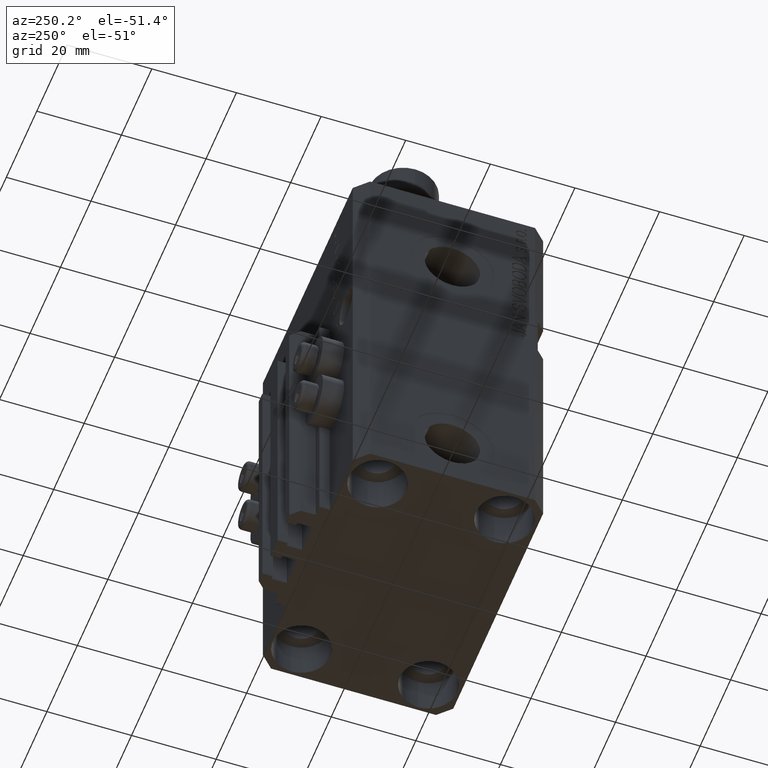
[diagram: clean part render]
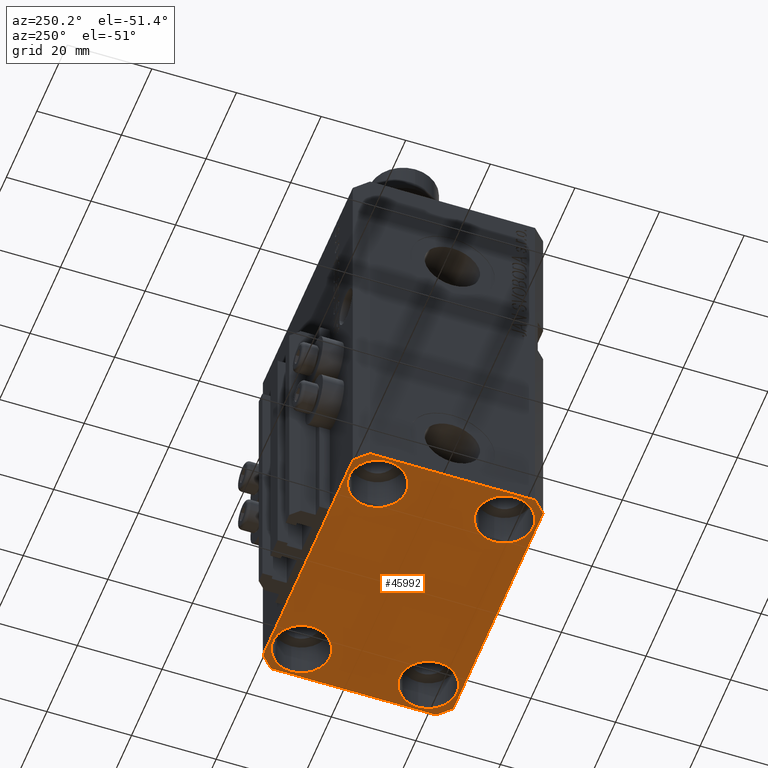
[diagram: same view with one face highlighted and labeled with its STEP entity id]
A machine part, auxiliary view. The second image highlights one B-rep face of the part: STEP entity #45992.
In plain terms, the highlighted planar face has unit normal (0, 0, 1).
Its self-contained STEP definition (entity closure, byte-faithful):
#124 = CARTESIAN_POINT ( 'NONE',  ( 24.99999999999999645, 15.00000000000000888, -97.00000000000000000 ) ) ;
#142 = EDGE_LOOP ( 'NONE', ( #31983, #10395 ) ) ;
#1855 = VECTOR ( 'NONE', #8737, 1000.000000000000000 ) ;
#1891 = AXIS2_PLACEMENT_3D ( 'NONE', #40384, #32508, #25579 ) ;
#3099 = CARTESIAN_POINT ( 'NONE',  ( 29.49999999999650413, -22.49999999999949196, -97.00000000000000000 ) ) ;
#3347 = ORIENTED_EDGE ( 'NONE', *, *, #30868, .T. ) ;
#3432 = CIRCLE ( 'NONE', #18404, 6.750000000022533087 ) ;
#3648 = CARTESIAN_POINT ( 'NONE',  ( -32.49999999999650413, 19.49999999999949907, -97.00000000000000000 ) ) ;
#3718 = ORIENTED_EDGE ( 'NONE', *, *, #48295, .F. ) ;
#3867 = VECTOR ( 'NONE', #33152, 1000.000000000000000 ) ;
#3904 = EDGE_CURVE ( 'NONE', #38134, #14259, #46347, .T. ) ;
#4214 = CARTESIAN_POINT ( 'NONE',  ( 32.49999999999651124, -19.49999999999949196, -97.00000000000000000 ) ) ;
#4624 = CARTESIAN_POINT ( 'NONE',  ( 25.00000000000000355, -15.00000000000000000, -97.00000000000000000 ) ) ;
#4639 = ORIENTED_EDGE ( 'NONE', *, *, #23275, .F. ) ;
#4800 = CARTESIAN_POINT ( 'NONE',  ( 24.99999999999999645, 15.00000000000000888, -97.00000000000000000 ) ) ;
#4903 = ORIENTED_EDGE ( 'NONE', *, *, #41879, .F. ) ;
#5132 = CARTESIAN_POINT ( 'NONE',  ( -29.49999999999650413, -22.49999999999949907, -97.00000000000000000 ) ) ;
#5265 = VERTEX_POINT ( 'NONE', #42693 ) ;
#5419 = CARTESIAN_POINT ( 'NONE',  ( -29.49999999999650413, 22.49999999999949907, -97.00000000000000000 ) ) ;
#7112 = DIRECTION ( 'NONE',  ( -0.000000000000000000, -0.000000000000000000, 1.000000000000000000 ) ) ;
#8085 = CARTESIAN_POINT ( 'NONE',  ( -32.49999999999650413, 19.49999999999949907, -97.00000000000000000 ) ) ;
#8652 = ORIENTED_EDGE ( 'NONE', *, *, #41016, .F. ) ;
#8737 = DIRECTION ( 'NONE',  ( 0.7071067811865483499, 0.7071067811865466846, 0.000000000000000000 ) ) ;
#9886 = ORIENTED_EDGE ( 'NONE', *, *, #46645, .T. ) ;
#10024 = DIRECTION ( 'NONE',  ( -0.000000000000000000, -0.000000000000000000, 1.000000000000000000 ) ) ;
#10387 = AXIS2_PLACEMENT_3D ( 'NONE', #24539, #34672, #38607 ) ;
#10395 = ORIENTED_EDGE ( 'NONE', *, *, #23883, .T. ) ;
#10689 = DIRECTION ( 'NONE',  ( 1.000000000000000000, 1.176083712526788232E-16, 0.000000000000000000 ) ) ;
#10976 = DIRECTION ( 'NONE',  ( -0.000000000000000000, -0.000000000000000000, 1.000000000000000000 ) ) ;
#11203 = VERTEX_POINT ( 'NONE', #14107 ) ;
#11469 = DIRECTION ( 'NONE',  ( 1.000000000000000000, 0.000000000000000000, 0.000000000000000000 ) ) ;
#11686 = CARTESIAN_POINT ( 'NONE',  ( 29.49999999999707967, 22.49999999999951328, -97.00000000000000000 ) ) ;
#12451 = PLANE ( 'NONE',  #45039 ) ;
#12618 = DIRECTION ( 'NONE',  ( 1.000000000000000000, 0.000000000000000000, 0.000000000000000000 ) ) ;
#12946 = DIRECTION ( 'NONE',  ( -0.000000000000000000, -0.000000000000000000, 1.000000000000000000 ) ) ;
#13189 = CARTESIAN_POINT ( 'NONE',  ( 0.000000000000000000, 0.000000000000000000, -97.00000000000000000 ) ) ;
#13255 = AXIS2_PLACEMENT_3D ( 'NONE', #20268, #23489, #12618 ) ;
#13473 = EDGE_LOOP ( 'NONE', ( #17650, #4903, #43204, #45122, #8652, #3718, #17404, #4639 ) ) ;
#13978 = DIRECTION ( 'NONE',  ( 1.000000000000000000, 0.000000000000000000, 0.000000000000000000 ) ) ;
#14107 = CARTESIAN_POINT ( 'NONE',  ( -32.49999999999650413, -19.49999999999949907, -97.00000000000000000 ) ) ;
#14259 = VERTEX_POINT ( 'NONE', #19152 ) ;
#14459 = VECTOR ( 'NONE', #23802, 1000.000000000000114 ) ;
#15145 = CIRCLE ( 'NONE', #10387, 6.750000000041541881 ) ;
#15491 = DIRECTION ( 'NONE',  ( -0.000000000000000000, -0.000000000000000000, 1.000000000000000000 ) ) ;
#16477 = EDGE_CURVE ( 'NONE', #5265, #29745, #15145, .T. ) ;
#16890 = FACE_BOUND ( 'NONE', #41121, .T. ) ;
#17145 = CARTESIAN_POINT ( 'NONE',  ( 18.25000000004154543, 15.00000000000000888, -97.00000000000000000 ) ) ;
#17404 = ORIENTED_EDGE ( 'NONE', *, *, #23946, .F. ) ;
#17628 = VECTOR ( 'NONE', #37709, 1000.000000000000000 ) ;
#17650 = ORIENTED_EDGE ( 'NONE', *, *, #30608, .F. ) ;
#17690 = VERTEX_POINT ( 'NONE', #5419 ) ;
#18172 = CARTESIAN_POINT ( 'NONE',  ( -31.75000000002253842, 15.00000000000000000, -97.00000000000000000 ) ) ;
#18336 = CARTESIAN_POINT ( 'NONE',  ( 32.49999999999651124, -19.49999999999949196, -97.00000000000000000 ) ) ;
#18404 = AXIS2_PLACEMENT_3D ( 'NONE', #40928, #7112, #34017 ) ;
#18863 = VERTEX_POINT ( 'NONE', #32577 ) ;
#19152 = CARTESIAN_POINT ( 'NONE',  ( -18.24999999997747224, 15.00000000000000000, -97.00000000000000000 ) ) ;
#19292 = LINE ( 'NONE', #23236, #29148 ) ;
#19684 = DIRECTION ( 'NONE',  ( 1.000000000000000000, 0.000000000000000000, 0.000000000000000000 ) ) ;
#20268 = CARTESIAN_POINT ( 'NONE',  ( -25.00000000000000355, 15.00000000000000000, -97.00000000000000000 ) ) ;
#20551 = VERTEX_POINT ( 'NONE', #17145 ) ;
#20593 = FACE_BOUND ( 'NONE', #43316, .T. ) ;
#20752 = VERTEX_POINT ( 'NONE', #11686 ) ;
#21172 = CIRCLE ( 'NONE', #47956, 6.749999999977465137 ) ;
#21797 = CARTESIAN_POINT ( 'NONE',  ( -29.49999999999650413, -22.49999999999949907, -97.00000000000000000 ) ) ;
#22237 = VECTOR ( 'NONE', #42371, 1000.000000000000114 ) ;
#22930 = ORIENTED_EDGE ( 'NONE', *, *, #16477, .T. ) ;
#23005 = VERTEX_POINT ( 'NONE', #8085 ) ;
#23236 = CARTESIAN_POINT ( 'NONE',  ( 32.49999999999702993, 19.49999999999945999, -97.00000000000000000 ) ) ;
#23243 = EDGE_CURVE ( 'NONE', #45218, #39725, #36906, .T. ) ;
#23275 = EDGE_CURVE ( 'NONE', #17690, #23005, #26788, .T. ) ;
#23489 = DIRECTION ( 'NONE',  ( -0.000000000000000000, -0.000000000000000000, 1.000000000000000000 ) ) ;
#23802 = DIRECTION ( 'NONE',  ( -0.7071067811865474617, -0.7071067811865474617, 0.000000000000000000 ) ) ;
#23883 = EDGE_CURVE ( 'NONE', #14259, #38134, #3432, .T. ) ;
#23933 = CIRCLE ( 'NONE', #1891, 6.749999999977465137 ) ;
#23946 = EDGE_CURVE ( 'NONE', #23005, #11203, #37465, .T. ) ;
#24075 = EDGE_CURVE ( 'NONE', #35839, #32147, #23933, .T. ) ;
#24101 = CARTESIAN_POINT ( 'NONE',  ( -31.75000000004154899, -15.00000000000000000, -97.00000000000000000 ) ) ;
#24104 = CARTESIAN_POINT ( 'NONE',  ( -32.49999999999650413, -19.49999999999949907, -97.00000000000000000 ) ) ;
#24148 = AXIS2_PLACEMENT_3D ( 'NONE', #124, #10976, #11469 ) ;
#24539 = CARTESIAN_POINT ( 'NONE',  ( -25.00000000000000355, -15.00000000000000000, -97.00000000000000000 ) ) ;
#25271 = VERTEX_POINT ( 'NONE', #5132 ) ;
#25579 = DIRECTION ( 'NONE',  ( 1.000000000000000000, 0.000000000000000000, 0.000000000000000000 ) ) ;
#25731 = VECTOR ( 'NONE', #42375, 1000.000000000000000 ) ;
#25980 = LINE ( 'NONE', #18336, #3867 ) ;
#26788 = LINE ( 'NONE', #34675, #14459 ) ;
#27329 = LINE ( 'NONE', #24104, #22237 ) ;
#27334 = CARTESIAN_POINT ( 'NONE',  ( 29.49999999999707967, 22.49999999999951328, -97.00000000000000000 ) ) ;
#27407 = CARTESIAN_POINT ( 'NONE',  ( 31.74999999995845101, 15.00000000000000888, -97.00000000000000000 ) ) ;
#27519 = DIRECTION ( 'NONE',  ( 1.000000000000000000, 0.000000000000000000, -0.000000000000000000 ) ) ;
#27557 = VECTOR ( 'NONE', #10689, 1000.000000000000000 ) ;
#27746 = CIRCLE ( 'NONE', #36411, 6.750000000041541881 ) ;
#28012 = DIRECTION ( 'NONE',  ( 1.000000000000000000, 0.000000000000000000, 0.000000000000000000 ) ) ;
#28252 = DIRECTION ( 'NONE',  ( 0.000000000000000000, 0.000000000000000000, 1.000000000000000000 ) ) ;
#29148 = VECTOR ( 'NONE', #45950, 1000.000000000000000 ) ;
#29383 = ORIENTED_EDGE ( 'NONE', *, *, #45966, .T. ) ;
#29642 = CARTESIAN_POINT ( 'NONE',  ( 29.49999999999650413, -22.49999999999949196, -97.00000000000000000 ) ) ;
#29745 = VERTEX_POINT ( 'NONE', #24101 ) ;
#30608 = EDGE_CURVE ( 'NONE', #20752, #17690, #38669, .T. ) ;
#30861 = CIRCLE ( 'NONE', #32440, 6.749999999958452790 ) ;
#30868 = EDGE_CURVE ( 'NONE', #37653, #20551, #43831, .T. ) ;
#31231 = FACE_BOUND ( 'NONE', #47339, .T. ) ;
#31964 = FACE_BOUND ( 'NONE', #142, .T. ) ;
#31983 = ORIENTED_EDGE ( 'NONE', *, *, #3904, .T. ) ;
#32147 = VERTEX_POINT ( 'NONE', #48225 ) ;
#32440 = AXIS2_PLACEMENT_3D ( 'NONE', #4800, #12946, #28012 ) ;
#32508 = DIRECTION ( 'NONE',  ( -0.000000000000000000, -0.000000000000000000, 1.000000000000000000 ) ) ;
#32577 = CARTESIAN_POINT ( 'NONE',  ( 32.49999999999702993, 19.49999999999945999, -97.00000000000000000 ) ) ;
#33152 = DIRECTION ( 'NONE',  ( 1.334402673828349134E-14, 1.000000000000000000, 0.000000000000000000 ) ) ;
#34017 = DIRECTION ( 'NONE',  ( 1.000000000000000000, 0.000000000000000000, 0.000000000000000000 ) ) ;
#34672 = DIRECTION ( 'NONE',  ( -0.000000000000000000, -0.000000000000000000, 1.000000000000000000 ) ) ;
#34675 = CARTESIAN_POINT ( 'NONE',  ( -29.49999999999650413, 22.49999999999949907, -97.00000000000000000 ) ) ;
#35839 = VERTEX_POINT ( 'NONE', #48578 ) ;
#36000 = ORIENTED_EDGE ( 'NONE', *, *, #24075, .T. ) ;
#36411 = AXIS2_PLACEMENT_3D ( 'NONE', #48287, #10024, #13978 ) ;
#36906 = LINE ( 'NONE', #3099, #1855 ) ;
#37097 = LINE ( 'NONE', #21797, #27557 ) ;
#37465 = LINE ( 'NONE', #3648, #17628 ) ;
#37653 = VERTEX_POINT ( 'NONE', #27407 ) ;
#37709 = DIRECTION ( 'NONE',  ( 0.000000000000000000, -1.000000000000000000, 0.000000000000000000 ) ) ;
#38134 = VERTEX_POINT ( 'NONE', #18172 ) ;
#38607 = DIRECTION ( 'NONE',  ( 1.000000000000000000, 0.000000000000000000, 0.000000000000000000 ) ) ;
#38669 = LINE ( 'NONE', #27334, #25731 ) ;
#38927 = EDGE_CURVE ( 'NONE', #32147, #35839, #21172, .T. ) ;
#39725 = VERTEX_POINT ( 'NONE', #4214 ) ;
#40384 = CARTESIAN_POINT ( 'NONE',  ( 25.00000000000000355, -15.00000000000000000, -97.00000000000000000 ) ) ;
#40928 = CARTESIAN_POINT ( 'NONE',  ( -25.00000000000000355, 15.00000000000000000, -97.00000000000000000 ) ) ;
#41016 = EDGE_CURVE ( 'NONE', #25271, #45218, #37097, .T. ) ;
#41121 = EDGE_LOOP ( 'NONE', ( #29383, #3347 ) ) ;
#41879 = EDGE_CURVE ( 'NONE', #18863, #20752, #19292, .T. ) ;
#42371 = DIRECTION ( 'NONE',  ( 0.7071067811865474617, -0.7071067811865474617, 0.000000000000000000 ) ) ;
#42375 = DIRECTION ( 'NONE',  ( -1.000000000000000000, -2.352167425053553784E-16, 0.000000000000000000 ) ) ;
#42693 = CARTESIAN_POINT ( 'NONE',  ( -18.24999999995845812, -15.00000000000000000, -97.00000000000000000 ) ) ;
#43204 = ORIENTED_EDGE ( 'NONE', *, *, #43957, .F. ) ;
#43316 = EDGE_LOOP ( 'NONE', ( #9886, #22930 ) ) ;
#43831 = CIRCLE ( 'NONE', #24148, 6.749999999958452790 ) ;
#43957 = EDGE_CURVE ( 'NONE', #39725, #18863, #25980, .T. ) ;
#45039 = AXIS2_PLACEMENT_3D ( 'NONE', #13189, #28252, #27519 ) ;
#45122 = ORIENTED_EDGE ( 'NONE', *, *, #23243, .F. ) ;
#45218 = VERTEX_POINT ( 'NONE', #29642 ) ;
#45950 = DIRECTION ( 'NONE',  ( -0.7071067811865352493, 0.7071067811865597852, 0.000000000000000000 ) ) ;
#45966 = EDGE_CURVE ( 'NONE', #20551, #37653, #30861, .T. ) ;
#45992 = ADVANCED_FACE ( 'NONE', ( #20593, #31231, #16890, #31964, #47008 ), #12451, .F. ) ;
#46347 = CIRCLE ( 'NONE', #13255, 6.750000000022533087 ) ;
#46645 = EDGE_CURVE ( 'NONE', #29745, #5265, #27746, .T. ) ;
#47008 = FACE_OUTER_BOUND ( 'NONE', #13473, .T. ) ;
#47339 = EDGE_LOOP ( 'NONE', ( #36000, #47812 ) ) ;
#47812 = ORIENTED_EDGE ( 'NONE', *, *, #38927, .T. ) ;
#47956 = AXIS2_PLACEMENT_3D ( 'NONE', #4624, #15491, #19684 ) ;
#48225 = CARTESIAN_POINT ( 'NONE',  ( 31.74999999997746869, -15.00000000000000000, -97.00000000000000000 ) ) ;
#48287 = CARTESIAN_POINT ( 'NONE',  ( -25.00000000000000355, -15.00000000000000000, -97.00000000000000000 ) ) ;
#48295 = EDGE_CURVE ( 'NONE', #11203, #25271, #27329, .T. ) ;
#48578 = CARTESIAN_POINT ( 'NONE',  ( 18.25000000002253842, -15.00000000000000000, -97.00000000000000000 ) ) ;